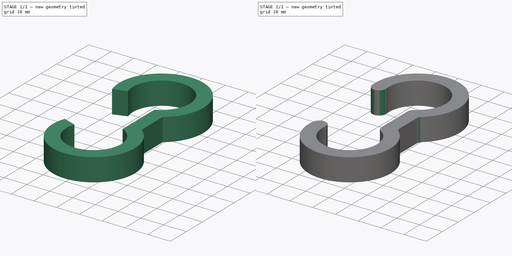
[diagram: build sequence overview — one tinted view per stage of 2, left to right]
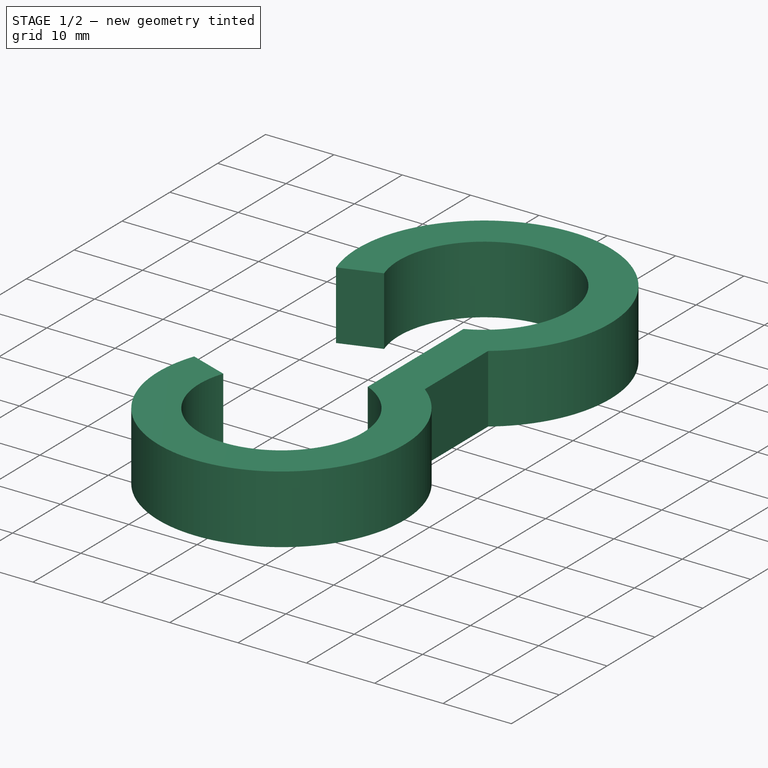
[diagram: stage 1 of 2 — iso view after this stage's code; geometry added in this stage tinted green]
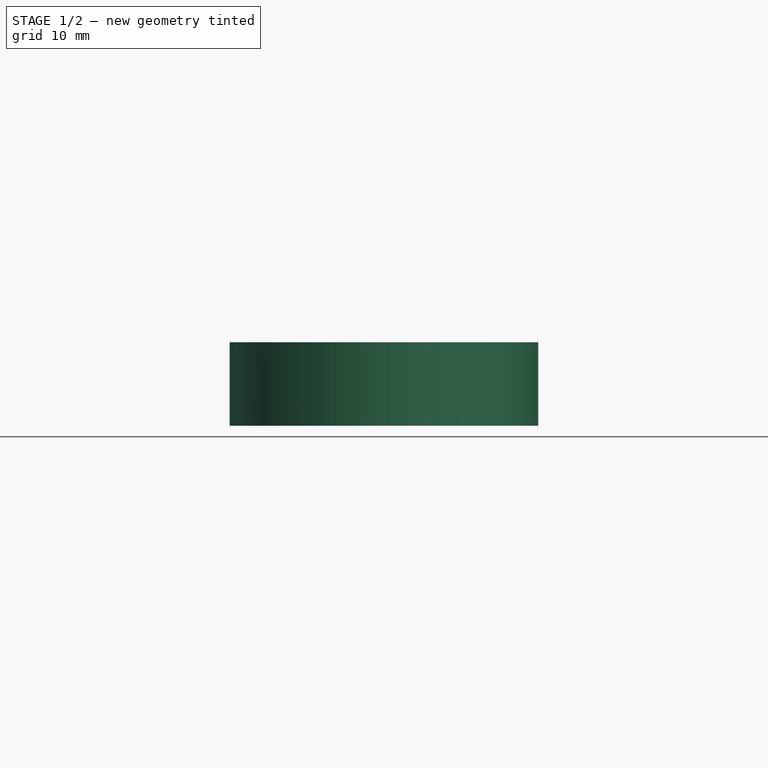
[diagram: stage 1 of 2 — front view after this stage's code; geometry added in this stage tinted green]
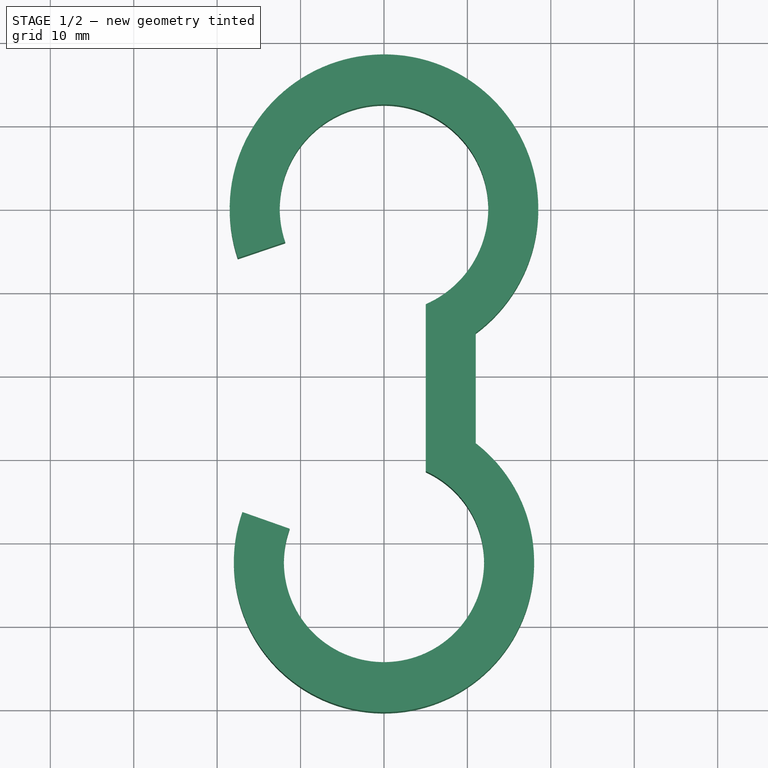
[diagram: stage 1 of 2 — top view after this stage's code; geometry added in this stage tinted green]
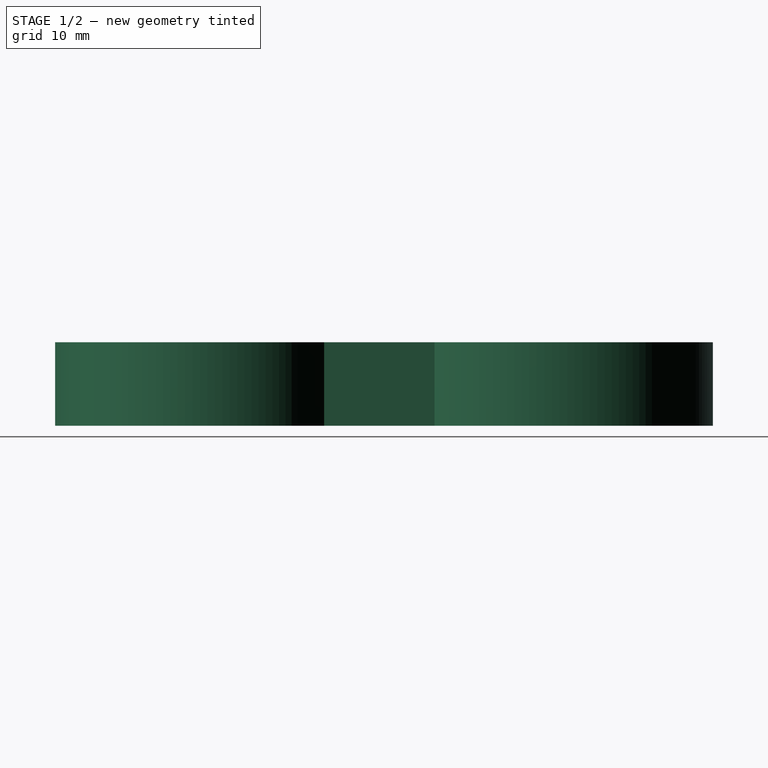
[diagram: stage 1 of 2 — right view after this stage's code; geometry added in this stage tinted green]
FCSTD DOCUMENT  (FreeCAD 1.0R39109 (Git))
Label: hanger rod hook
License: All rights reserved
LicenseURL: https://en.wikipedia.org/wiki/All_rights_reserved
objects: Sketcher::SketchObject×1, PartDesign::Pad×1, PartDesign::Fillet×1, PartDesign::Body×1
note: 9 computed .brp shape members not serialized (recipe doc carries the construction recipe); baked Part::Feature solids carry a one-line shape summary decoded from their .brp

FEATURE [Sketcher::SketchObject] Sketch
  ArcFitTolerance = 1e-06
  AttachmentSupport = -> [XY_Plane]
  FullyConstrained = true
  MakeInternals = false
  MapMode = 5
  sketch-geometry (8):
    g0: ArcOfCircle CenterX=0 CenterY=0 CenterZ=0 NormalX=0 NormalY=0 NormalZ=1 AngleXU=0 Radius=12.5 StartAngle=5.12391 EndAngle=9.75051
    g1: ArcOfCircle CenterX=0 CenterY=0 CenterZ=0 NormalX=0 NormalY=0 NormalZ=1 AngleXU=0 Radius=18.5 StartAngle=5.34915 EndAngle=9.75051
    g2: LineSegment StartX=11 StartY=-14.8745 StartZ=0 EndX=11 EndY=-28.1173 EndZ=0
    g3: LineSegment StartX=5 StartY=-11.4564 StartZ=0 EndX=5 EndY=-31.4564 EndZ=0
    g4: ArcOfCircle CenterX=0 CenterY=-42.3652 CenterZ=0 NormalX=0 NormalY=0 NormalZ=1 AngleXU=0 Radius=18 StartAngle=2.80176 EndAngle=7.19652
    g5: ArcOfCircle CenterX=0 CenterY=-42.3652 CenterZ=0 NormalX=0 NormalY=0 NormalZ=1 AngleXU=0 Radius=12 StartAngle=2.80176 EndAngle=7.42421
    g6: LineSegment StartX=-11.8427 StartY=-4 StartZ=0 EndX=-17.5272 EndY=-5.92 EndZ=0
    g7: LineSegment StartX=-11.3137 StartY=-38.3652 StartZ=0 EndX=-16.9706 EndY=-36.3652 EndZ=0
  constraints (25):
    c: Coincident(g0,g-1)
    c: Coincident(g1,g0)
    c: Diameter(g0) = 25
    c: Diameter(g1) = 37
    c: Coincident(g2,g1)
    c: Vertical(g2)
    c: Coincident(g3,g0)
    c: Vertical(g3)
    c: PointOnObject(g4,g-2)
    c: Coincident(g4,g2)
    c: Diameter(g4) = 36
    c: Coincident(g5,g4)
    c: Coincident(g5,g3)
    c: Diameter(g5) = 24
    c: Coincident(g6,g0)
    c: Coincident(g6,g1)
    c: Coincident(g7,g5)
    c: Coincident(g7,g4)
    c: Perpendicular(g0,g6)
    c: Perpendicular(g5,g7)
    c: DistanceX(g0,g1) = 6
    c: DistanceY(g0,g-1) = 4
    c: DistanceX(g-1,g0) = 5
    c: DistanceY(g4,g5) = 4
    c: DistanceY(g3,g3) = 20
FEATURE [PartDesign::Pad] Pad
  Direction = (0,0,1)
  Length = 10
  Length2 = 10
  Profile = -> Sketch
  ReferenceAxis = -> Sketch [N_Axis]
  Refine = true
  Suppressed = false
  Type = 0
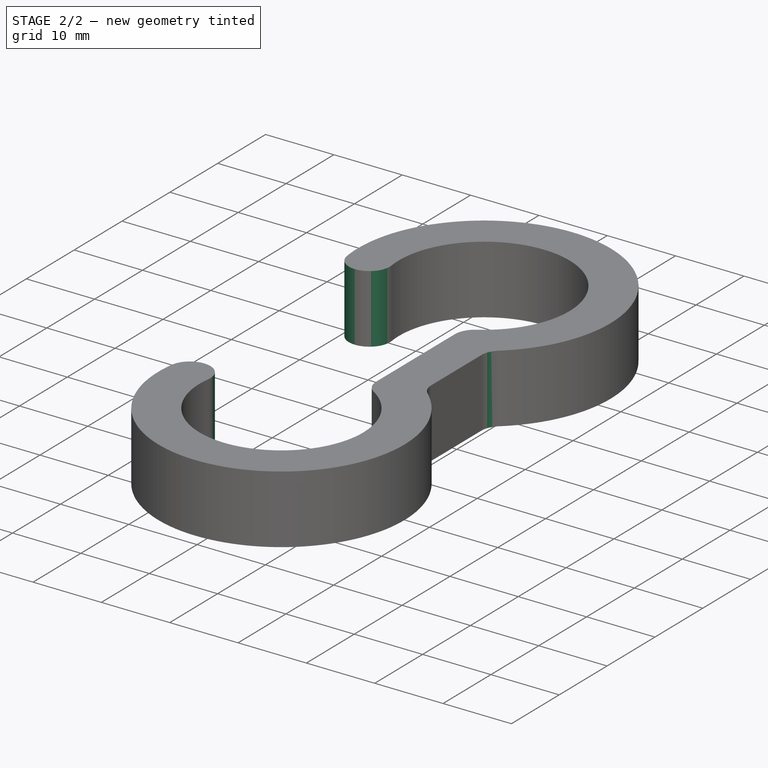
[diagram: stage 2 of 2 — iso view after this stage's code; geometry added in this stage tinted green]
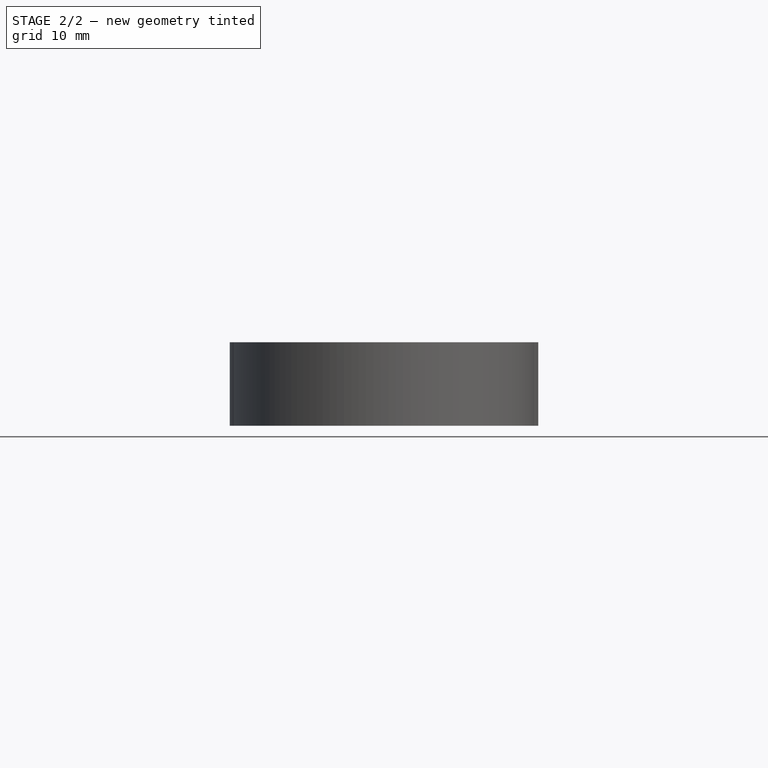
[diagram: stage 2 of 2 — front view after this stage's code; geometry added in this stage tinted green]
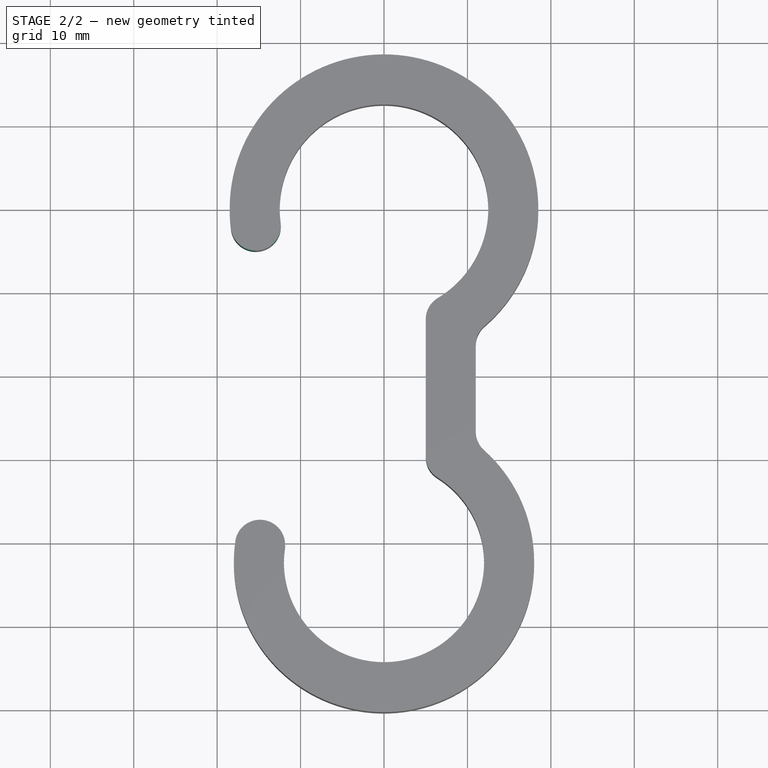
[diagram: stage 2 of 2 — top view after this stage's code; geometry added in this stage tinted green]
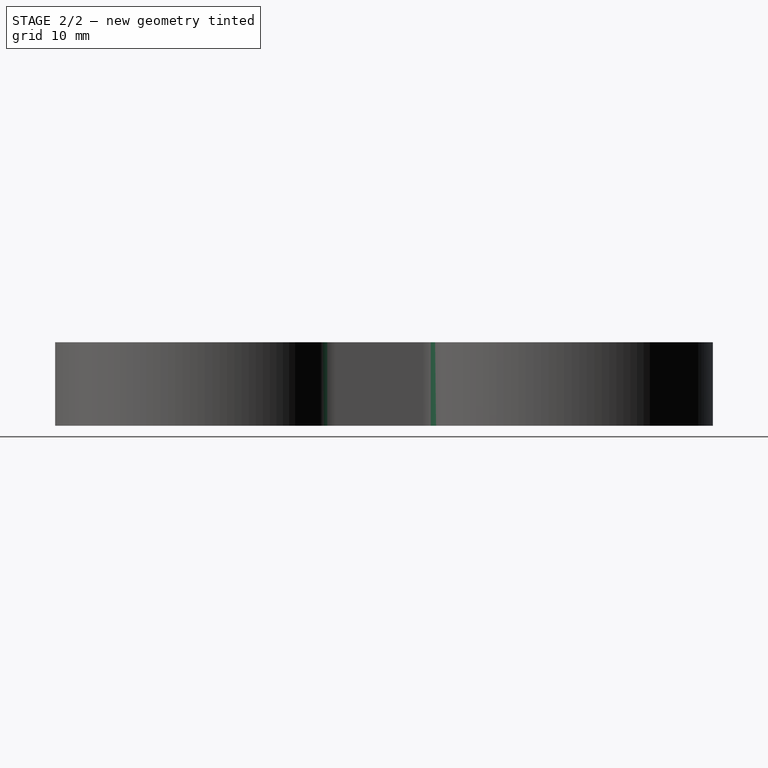
[diagram: stage 2 of 2 — right view after this stage's code; geometry added in this stage tinted green]
FEATURE [PartDesign::Fillet] Fillet
  Base = -> Pad [Edge11,Edge8,Edge1,Edge20,Edge2,Edge5,Edge14,Edge17]
  BaseFeature = -> Pad
  Radius = 2.99
  Refine = true
  SupportTransform = false
  Suppressed = false
  UseAllEdges = false
FEATURE [PartDesign::Body] Body
  AllowCompound = false
  Group = -> [Sketch,Pad,Fillet]
  Origin = -> Origin
  Tip = -> Fillet
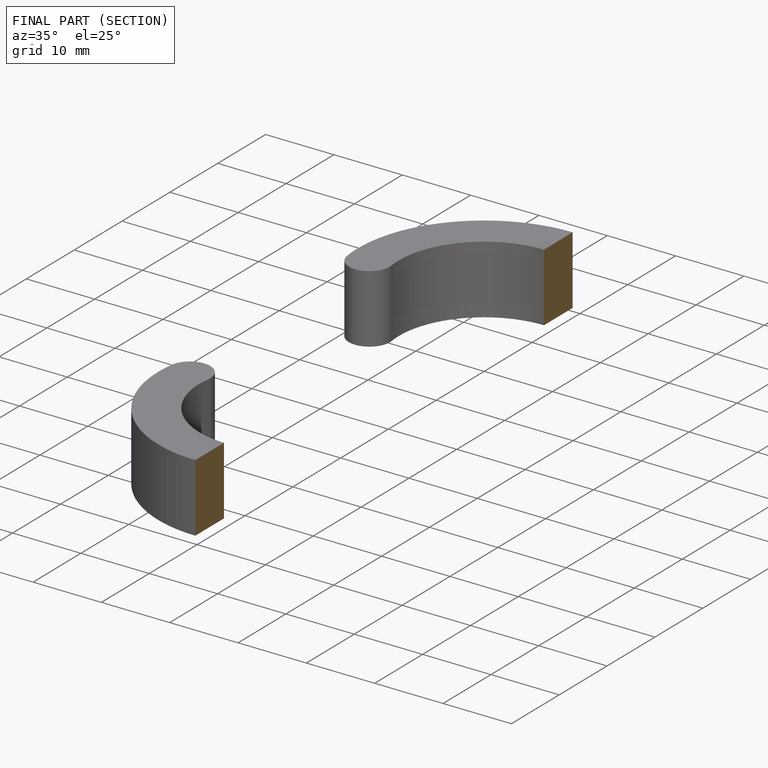
[diagram: finished part — half-section view (interior)]
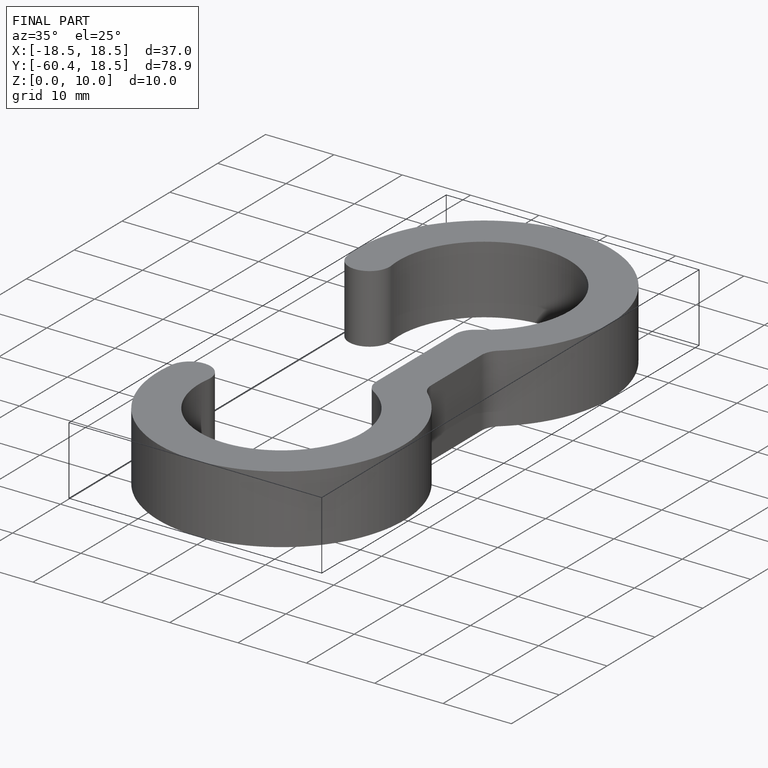
[diagram: finished part — iso view with bounding-box wireframe]
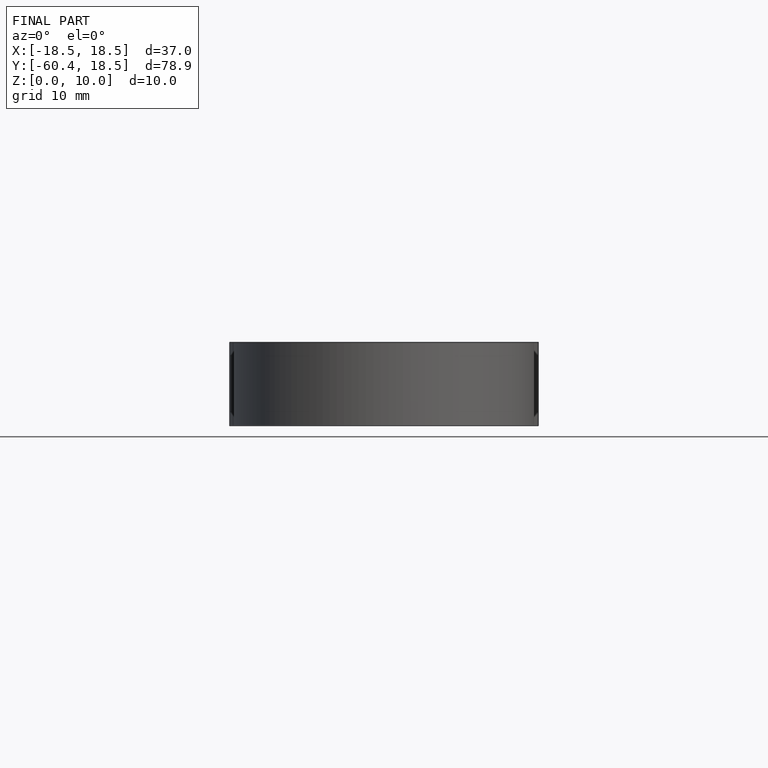
[diagram: finished part — front view with bounding-box wireframe]
